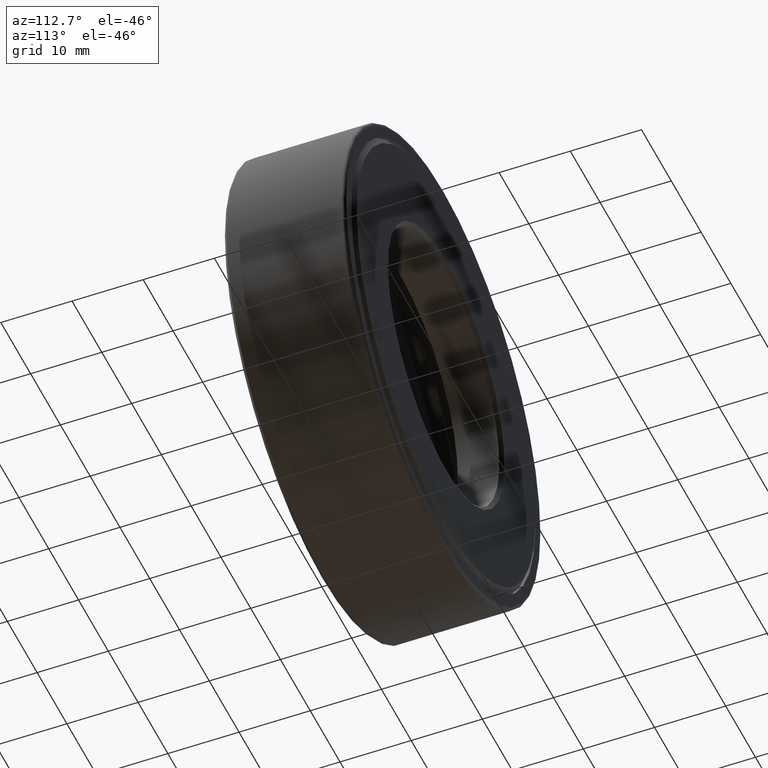
[diagram: clean part render]
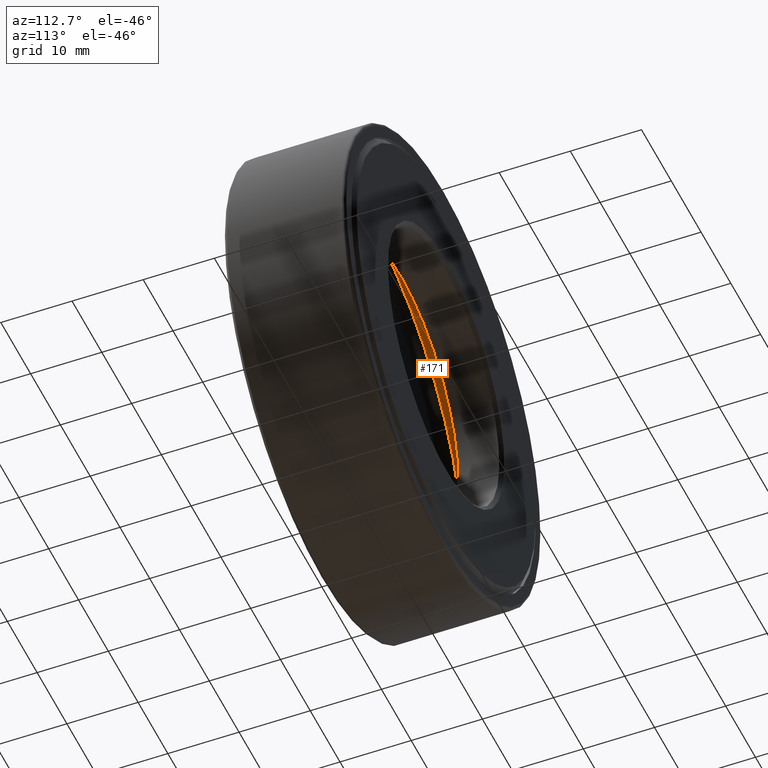
[diagram: same view with one face highlighted and labeled with its STEP entity id]
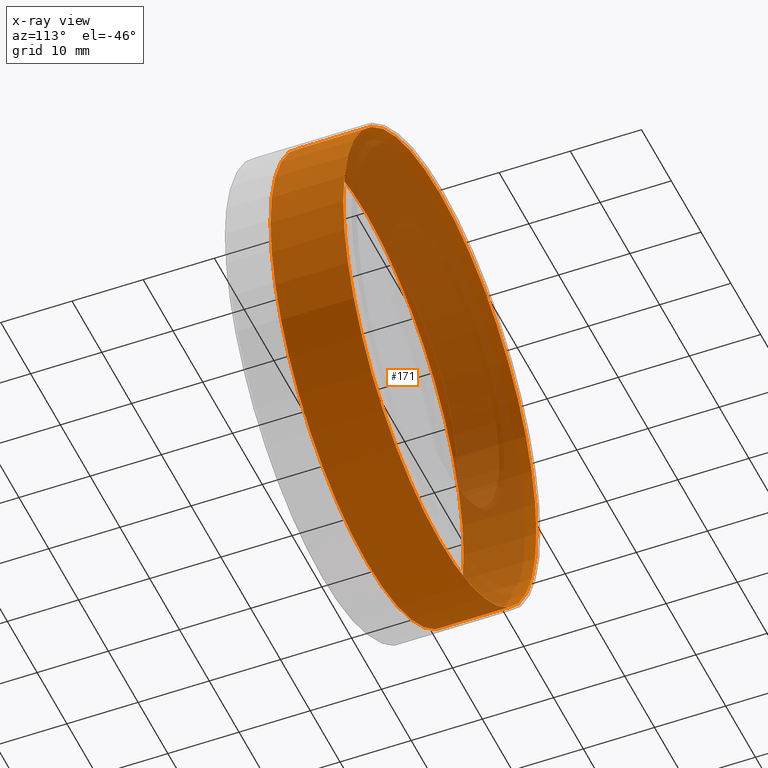
[diagram: x-ray of the same camera — body ghosted, the highlighted face saturated]
A machine part, auxiliary view. The second image highlights one B-rep face of the part: STEP entity #171.
The next image is the same camera in x-ray: the body ghosted, the highlighted face saturated — about 39% of this face is hidden behind the body in this view.
In plain terms, the highlighted cylindrical surface (bore or boss wall) has radius 32.4326 mm, axis along (-0, 1, -0).
Its self-contained STEP definition (entity closure, byte-faithful):
#17 = VERTEX_POINT ( 'NONE', #168 ) ;
#28 = DIRECTION ( 'NONE',  ( -0.0000000000000000000, 1.000000000000000000, -0.0000000000000000000 ) ) ;
#68 = VERTEX_POINT ( 'NONE', #278 ) ;
#134 = CYLINDRICAL_SURFACE ( 'NONE', #481, 1.276875000000000000 ) ;
#161 = DIRECTION ( 'NONE',  ( 0.0000000000000000000, 0.0000000000000000000, 1.000000000000000000 ) ) ;
#168 = CARTESIAN_POINT ( 'NONE',  ( 0.0000000000000000000, 0.6524999999999997500, 1.276875000000000000 ) ) ;
#171 = ADVANCED_FACE ( 'NONE', ( #502, #203 ), #134, .F. ) ;
#203 = FACE_OUTER_BOUND ( 'NONE', #336, .T. ) ;
#206 = AXIS2_PLACEMENT_3D ( 'NONE', #299, #28, #442 ) ;
#253 = EDGE_LOOP ( 'NONE', ( #263 ) ) ;
#254 = CIRCLE ( 'NONE', #300, 1.276875000000000000 ) ;
#263 = ORIENTED_EDGE ( 'NONE', *, *, #549, .F. ) ;
#278 = CARTESIAN_POINT ( 'NONE',  ( 0.0000000000000000000, 0.2499999999999998300, 1.276875000000000000 ) ) ;
#281 = CARTESIAN_POINT ( 'NONE',  ( 0.0000000000000000000, 0.6524999999999997500, 0.0000000000000000000 ) ) ;
#284 = CIRCLE ( 'NONE', #206, 1.276875000000000000 ) ;
#299 = CARTESIAN_POINT ( 'NONE',  ( 0.0000000000000000000, 0.2499999999999998300, 0.0000000000000000000 ) ) ;
#300 = AXIS2_PLACEMENT_3D ( 'NONE', #281, #437, #161 ) ;
#336 = EDGE_LOOP ( 'NONE', ( #582 ) ) ;
#356 = EDGE_CURVE ( 'NONE', #17, #17, #254, .T. ) ;
#437 = DIRECTION ( 'NONE',  ( -0.0000000000000000000, 1.000000000000000000, -0.0000000000000000000 ) ) ;
#442 = DIRECTION ( 'NONE',  ( 0.0000000000000000000, 0.0000000000000000000, 1.000000000000000000 ) ) ;
#481 = AXIS2_PLACEMENT_3D ( 'NONE', #514, #508, #597 ) ;
#502 = FACE_OUTER_BOUND ( 'NONE', #253, .T. ) ;
#508 = DIRECTION ( 'NONE',  ( -0.0000000000000000000, 1.000000000000000000, -0.0000000000000000000 ) ) ;
#514 = CARTESIAN_POINT ( 'NONE',  ( 0.0000000000000000000, 0.0000000000000000000, 0.0000000000000000000 ) ) ;
#549 = EDGE_CURVE ( 'NONE', #68, #68, #284, .T. ) ;
#582 = ORIENTED_EDGE ( 'NONE', *, *, #356, .T. ) ;
#597 = DIRECTION ( 'NONE',  ( 0.0000000000000000000, 0.0000000000000000000, 1.000000000000000000 ) ) ;